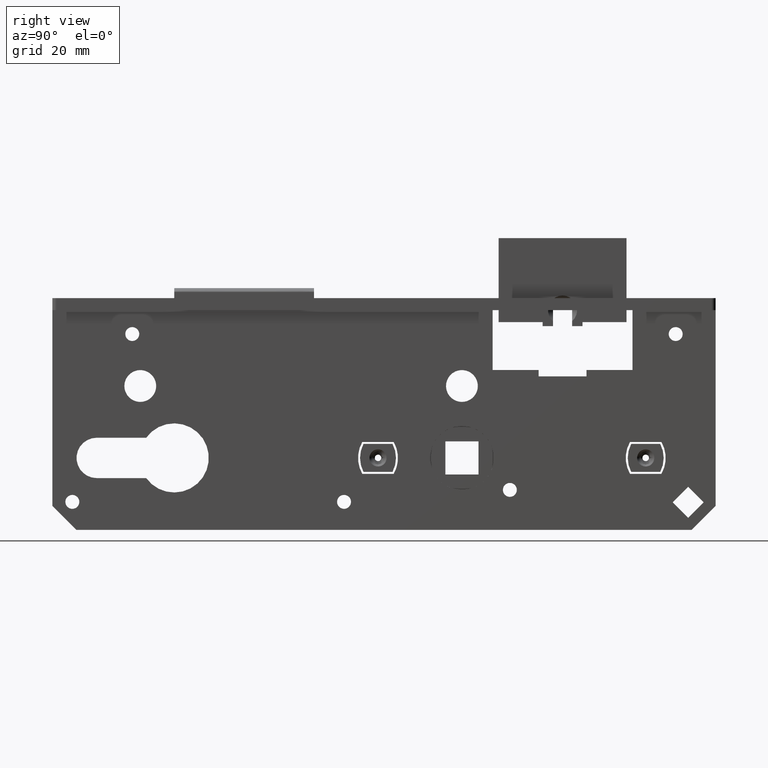
[diagram: clean part render]
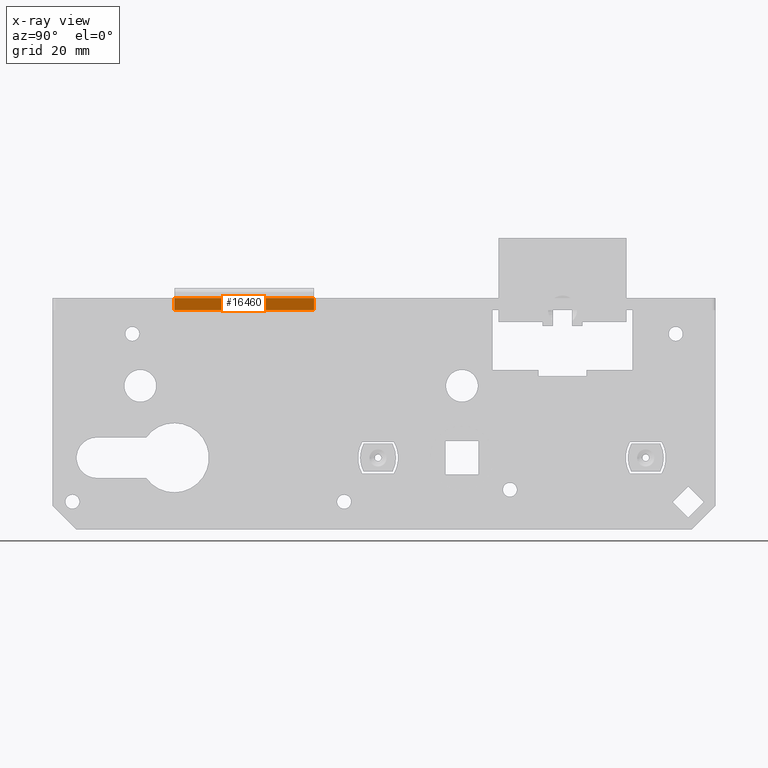
[diagram: x-ray — body ghosted, one internal face saturated and labeled with its STEP entity id]
A machine part, right view, then the same camera in x-ray: the body is ghosted and one INTERNAL B-rep face — a face not visible from any outside direction — is saturated and labeled: STEP entity #16460.
In plain terms, the highlighted planar face has unit normal (1, 0, 0).
Its self-contained STEP definition (entity closure, byte-faithful):
#650 = DIRECTION ( 'NONE',  ( 0.000000000000000000, 0.000000000000000000, -1.000000000000000000 ) ) ;
#925 = CARTESIAN_POINT ( 'NONE',  ( 4.119999999999994778, -17.50500000000002743, 1.500000000000000000 ) ) ;
#1456 = CARTESIAN_POINT ( 'NONE',  ( 4.119999999999994778, -17.50500000000002743, 1.500000000000000000 ) ) ;
#2497 = DIRECTION ( 'NONE',  ( -0.000000000000000000, 1.000000000000000000, -0.000000000000000000 ) ) ;
#3112 = EDGE_CURVE ( 'NONE', #15527, #20316, #7202, .T. ) ;
#4523 = VECTOR ( 'NONE', #8302, 1000.000000000000000 ) ;
#4811 = CARTESIAN_POINT ( 'NONE',  ( 4.119999999999993001, -52.50500000000001677, -1.500000000000000000 ) ) ;
#6008 = EDGE_CURVE ( 'NONE', #14361, #20316, #17648, .T. ) ;
#6493 = CARTESIAN_POINT ( 'NONE',  ( 4.119999999999993001, -52.50500000000001677, 1.500000000000000000 ) ) ;
#7202 = LINE ( 'NONE', #14408, #15809 ) ;
#7263 = LINE ( 'NONE', #12738, #4523 ) ;
#8302 = DIRECTION ( 'NONE',  ( -0.000000000000000000, -0.000000000000000000, 1.000000000000000000 ) ) ;
#8796 = EDGE_CURVE ( 'NONE', #9004, #15527, #13179, .T. ) ;
#9004 = VERTEX_POINT ( 'NONE', #4811 ) ;
#10080 = DIRECTION ( 'NONE',  ( 1.000000000000000000, 0.000000000000000000, 0.000000000000000000 ) ) ;
#10481 = VECTOR ( 'NONE', #12039, 1000.000000000000000 ) ;
#10713 = EDGE_CURVE ( 'NONE', #9004, #14361, #7263, .T. ) ;
#10786 = VECTOR ( 'NONE', #2497, 1000.000000000000000 ) ;
#12039 = DIRECTION ( 'NONE',  ( -0.000000000000000000, 1.000000000000000000, -0.000000000000000000 ) ) ;
#12738 = CARTESIAN_POINT ( 'NONE',  ( 4.119999999999993001, -52.50500000000001677, -1.500000000000000000 ) ) ;
#13179 = LINE ( 'NONE', #13769, #10481 ) ;
#13249 = CARTESIAN_POINT ( 'NONE',  ( 4.119999999999994778, -17.50500000000002743, -1.500000000000000000 ) ) ;
#13516 = CARTESIAN_POINT ( 'NONE',  ( 4.119999999999994778, -17.50500000000002743, -1.500000000000000000 ) ) ;
#13769 = CARTESIAN_POINT ( 'NONE',  ( 4.119999999999994778, -17.50500000000002743, -1.500000000000000000 ) ) ;
#13900 = ORIENTED_EDGE ( 'NONE', *, *, #3112, .F. ) ;
#14361 = VERTEX_POINT ( 'NONE', #6493 ) ;
#14408 = CARTESIAN_POINT ( 'NONE',  ( 4.119999999999994778, -17.50500000000002743, -1.500000000000000000 ) ) ;
#15527 = VERTEX_POINT ( 'NONE', #13516 ) ;
#15664 = AXIS2_PLACEMENT_3D ( 'NONE', #13249, #10080, #650 ) ;
#15786 = ORIENTED_EDGE ( 'NONE', *, *, #6008, .T. ) ;
#15809 = VECTOR ( 'NONE', #19228, 1000.000000000000000 ) ;
#16085 = FACE_OUTER_BOUND ( 'NONE', #18289, .T. ) ;
#16460 = ADVANCED_FACE ( 'NONE', ( #16085 ), #19444, .F. ) ;
#17648 = LINE ( 'NONE', #925, #10786 ) ;
#18289 = EDGE_LOOP ( 'NONE', ( #15786, #13900, #18560, #18795 ) ) ;
#18560 = ORIENTED_EDGE ( 'NONE', *, *, #8796, .F. ) ;
#18795 = ORIENTED_EDGE ( 'NONE', *, *, #10713, .T. ) ;
#19228 = DIRECTION ( 'NONE',  ( -0.000000000000000000, -0.000000000000000000, 1.000000000000000000 ) ) ;
#19444 = PLANE ( 'NONE',  #15664 ) ;
#20316 = VERTEX_POINT ( 'NONE', #1456 ) ;